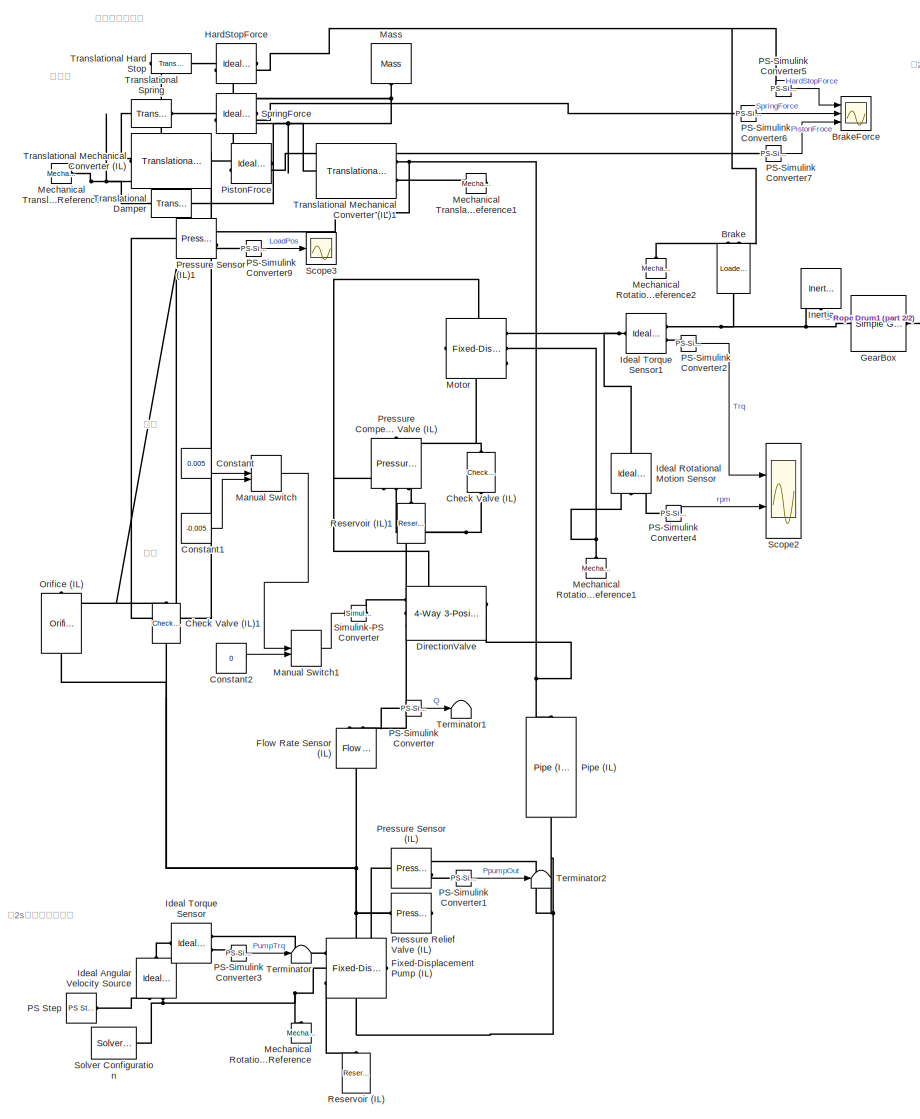
[diagram: root canvas - part 1/2, center side, full height]
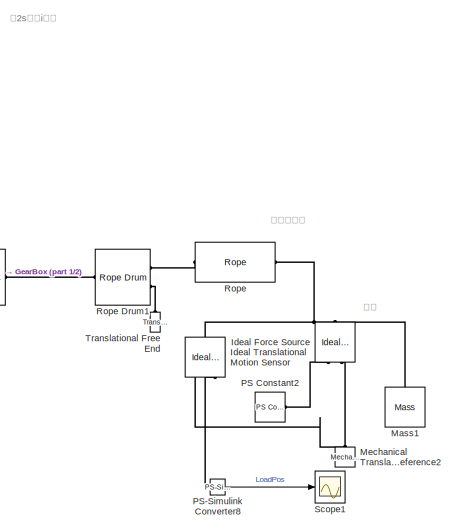
[diagram: root canvas - part 2/2, top right region]
MODEL slx_b5b58f43c9d5
KIND model
CONFIG AbsTol = auto
CONFIG EnableMultiTasking = off
CONFIG FixedStep = auto
CONFIG MaxStep = auto
CONFIG MinStep = auto
CONFIG RelTol = 1e-3
CONFIG SampleTimeConstraint = Unconstrained
CONFIG SolverName = VariableStepAuto
CONFIG StartTime = 0.0
CONFIG StopTime = 100
BLOCK [Reference] Brake  REF=sdl_lib/Brakes & Detents/Rotational/Loaded-Contact
Rotational Friction
  NameLocation = left
  Ports = [0, 0, 0, 0, 0, 2, 1]
  SourceBlock = sdl_lib/Brakes & Detents/Rotational/Loaded-Contact\nRotational Friction
  SourceProductBaseCode = LD
  SourceType = Loaded-Contact\nRotational Friction
BLOCK [Scope] BrakeForce
  Floating = off
  NumInputPorts = 3
  Ports = [3]
  ScopeSpecificationString = Simulink.scopes.TimeScopeBlockCfg('CurrentConfiguration', extmgr.ConfigurationSet(extmgr.Configuration('Core','General UI',true),extmgr.Configuration('Core','Source UI',true),extmgr.Configuration('Sources','WiredSimulink',true),extmgr.Configuration('Visuals','Time Domain',true,'SerializedDisplays',{struct('MinYLimReal','-10239.84159','MaxYLimReal','-7841.42571','YLabelReal','','MinYLimMag','   0.0...<+2815ch>
BLOCK [Reference] Check Valve (IL)  REF=SimscapeFluids_lib/Isothermal Liquid/Valves & Orifices/Directional Control
Valves/Check Valve (IL)
  AttributesFormatString = %<p_crack_differential> %<p_crack_differential_unit>
  NameLocation = right
  Ports = [0, 0, 0, 0, 0, 1, 1]
  SourceBlock = SimscapeFluids_lib/Isothermal Liquid/Valves & Orifices/Directional Control\nValves/Check Valve (IL)
  SourceProductBaseCode = SH
  SourceType = Check Valve (IL)
BLOCK [Reference] Check Valve (IL)1  REF=SimscapeFluids_lib/Isothermal Liquid/Valves & Orifices/Directional Control
Valves/Check Valve (IL)
  AttributesFormatString = %<p_crack_differential> %<p_crack_differential_unit>
  NameLocation = left
  Ports = [0, 0, 0, 0, 0, 1, 1]
  SourceBlock = SimscapeFluids_lib/Isothermal Liquid/Valves & Orifices/Directional Control\nValves/Check Valve (IL)
  SourceProductBaseCode = SH
  SourceType = Check Valve (IL)
BLOCK [Constant] Constant
  Value = 0.005
BLOCK [Constant] Constant1
  Value = -0.005
BLOCK [Constant] Constant2
  Value = 0
BLOCK [Reference] DirectionValve  REF=SimscapeFluids_lib/Isothermal Liquid/Valves & Orifices/Directional Control
Valves/4-Way 3-Position
Directional Valve
(IL)
  Ports = [0, 0, 0, 0, 0, 3, 2]
  SourceBlock = SimscapeFluids_lib/Isothermal Liquid/Valves & Orifices/Directional Control\nValves/4-Way 3-Position\nDirectional Valve\n(IL)
  SourceProductBaseCode = SH
  SourceType = 4-Way 3-Position\nDirectional Valve\n(IL)
BLOCK [Reference] Fixed-Displacement Pump (IL)  REF=SimscapeFluids_lib/Isothermal Liquid/Pumps & Motors/Fixed-Displacement
Pump (IL)
  NameLocation = top
  Ports = [0, 0, 0, 0, 0, 1, 3]
  SourceBlock = SimscapeFluids_lib/Isothermal Liquid/Pumps & Motors/Fixed-Displacement\nPump (IL)
  SourceProductBaseCode = SH
  SourceType = Fixed-Displacement\nPump (IL)
BLOCK [Reference] Flow Rate Sensor (IL)  REF=fl_lib/Isothermal Liquid/Sensors/Flow Rate Sensor
(IL)
  NameLocation = right
  Ports = [0, 0, 0, 0, 0, 1, 2]
  SourceBlock = fl_lib/Isothermal Liquid/Sensors/Flow Rate Sensor\n(IL)
  SourceProductBaseCode = PW,SS,VE
  SourceType = Flow Rate Sensor\n(IL)
BLOCK [Reference] GearBox  REF=sdl_lib/Gears/Simple Gear
  Ports = [0, 0, 0, 0, 0, 1, 1]
  SourceBlock = sdl_lib/Gears/Simple Gear
  SourceProductBaseCode = LD
  SourceType = Simple Gear
BLOCK [Reference] HardStopForce  REF=fl_lib/Mechanical/Mechanical Sensors/Ideal Force Sensor
  Ports = [0, 0, 0, 0, 0, 1, 2]
  SourceBlock = fl_lib/Mechanical/Mechanical Sensors/Ideal Force Sensor
  SourceProductBaseCode = PW,SS,VE
  SourceType = Ideal Force Sensor
BLOCK [Reference] Ideal Angular Velocity Source  REF=fl_lib/Mechanical/Mechanical Sources/Ideal Angular
Velocity Source
  NameLocation = right
  Ports = [0, 0, 0, 0, 0, 1, 2]
  SourceBlock = fl_lib/Mechanical/Mechanical Sources/Ideal Angular\nVelocity Source
  SourceProductBaseCode = PW,SS,VE
  SourceType = Ideal Angular\nVelocity Source
BLOCK [Reference] Ideal Force Source  REF=fl_lib/Mechanical/Mechanical Sources/Ideal Force Source
  NameLocation = right
  Ports = [0, 0, 0, 0, 0, 1, 2]
  SourceBlock = fl_lib/Mechanical/Mechanical Sources/Ideal Force Source
  SourceProductBaseCode = PW,SS,VE
  SourceType = Ideal Force Source
BLOCK [Reference] Ideal Rotational Motion Sensor  REF=fl_lib/Mechanical/Mechanical Sensors/Ideal Rotational
Motion Sensor
  NameLocation = left
  Ports = [0, 0, 0, 0, 0, 1, 3]
  SourceBlock = fl_lib/Mechanical/Mechanical Sensors/Ideal Rotational\nMotion Sensor
  SourceProductBaseCode = PW,SS,VE
  SourceType = Ideal Rotational\nMotion Sensor
BLOCK [Reference] Ideal Torque Sensor  REF=fl_lib/Mechanical/Mechanical Sensors/Ideal Torque Sensor
  Ports = [0, 0, 0, 0, 0, 1, 2]
  SourceBlock = fl_lib/Mechanical/Mechanical Sensors/Ideal Torque Sensor
  SourceProductBaseCode = PW,SS,VE
  SourceType = Ideal Torque Sensor
BLOCK [Reference] Ideal Torque Sensor1  REF=fl_lib/Mechanical/Mechanical Sensors/Ideal Torque Sensor
  Ports = [0, 0, 0, 0, 0, 1, 2]
  SourceBlock = fl_lib/Mechanical/Mechanical Sensors/Ideal Torque Sensor
  SourceProductBaseCode = PW,SS,VE
  SourceType = Ideal Torque Sensor
BLOCK [Reference] Ideal Translational Motion Sensor  REF=fl_lib/Mechanical/Mechanical Sensors/Ideal Translational
Motion Sensor
  NameLocation = left
  Ports = [0, 0, 0, 0, 0, 1, 3]
  SourceBlock = fl_lib/Mechanical/Mechanical Sensors/Ideal Translational\nMotion Sensor
  SourceProductBaseCode = PW,SS,VE
  SourceType = Ideal Translational\nMotion Sensor
BLOCK [Reference] Inertia  REF=fl_lib/Mechanical/Rotational Elements/Inertia
  NameLocation = left
  Ports = [0, 0, 0, 0, 0, 1]
  SourceBlock = fl_lib/Mechanical/Rotational Elements/Inertia
  SourceProductBaseCode = PW,SS,VE
  SourceType = Inertia
BLOCK [ManualSwitch] Manual Switch
BLOCK [ManualSwitch] Manual Switch1
  CurrentSetting = 0
BLOCK [Reference] Mass  REF=fl_lib/Mechanical/Translational
Elements/Mass
  NameLocation = left
  Ports = [0, 0, 0, 0, 0, 1]
  SourceBlock = fl_lib/Mechanical/Translational\nElements/Mass
  SourceProductBaseCode = PW,SS,VE
  SourceType = Mass
BLOCK [Reference] Mass1  REF=fl_lib/Mechanical/Translational
Elements/Mass
  NameLocation = right
  Ports = [0, 0, 0, 0, 0, 1]
  SourceBlock = fl_lib/Mechanical/Translational\nElements/Mass
  SourceProductBaseCode = PW,SS,VE
  SourceType = Mass
BLOCK [Reference] Mechanical Rotational Reference  REF=fl_lib/Mechanical/Rotational Elements/Mechanical
Rotational Reference
  NameLocation = right
  Ports = [0, 0, 0, 0, 0, 1]
  SourceBlock = fl_lib/Mechanical/Rotational Elements/Mechanical\nRotational Reference
  SourceProductBaseCode = PW,SS,VE
  SourceType = Mechanical\nRotational Reference
BLOCK [Reference] Mechanical Rotational Reference1  REF=fl_lib/Mechanical/Rotational Elements/Mechanical
Rotational Reference
  NameLocation = right
  Ports = [0, 0, 0, 0, 0, 1]
  SourceBlock = fl_lib/Mechanical/Rotational Elements/Mechanical\nRotational Reference
  SourceProductBaseCode = PW,SS,VE
  SourceType = Mechanical\nRotational Reference
BLOCK [Reference] Mechanical Rotational Reference2  REF=fl_lib/Mechanical/Rotational Elements/Mechanical
Rotational Reference
  NameLocation = right
  Ports = [0, 0, 0, 0, 0, 1]
  SourceBlock = fl_lib/Mechanical/Rotational Elements/Mechanical\nRotational Reference
  SourceProductBaseCode = PW,SS,VE
  SourceType = Mechanical\nRotational Reference
BLOCK [Reference] Mechanical Translational Reference  REF=fl_lib/Mechanical/Translational
Elements/Mechanical
Translational
Reference
  Ports = [0, 0, 0, 0, 0, 1]
  SourceBlock = fl_lib/Mechanical/Translational\nElements/Mechanical\nTranslational\nReference
  SourceProductBaseCode = PW,SS,VE
  SourceType = Mechanical\nTranslational\nReference
BLOCK [Reference] Mechanical Translational Reference1  REF=fl_lib/Mechanical/Translational
Elements/Mechanical
Translational
Reference
  NameLocation = top
  Ports = [0, 0, 0, 0, 0, 1]
  SourceBlock = fl_lib/Mechanical/Translational\nElements/Mechanical\nTranslational\nReference
  SourceProductBaseCode = PW,SS,VE
  SourceType = Mechanical\nTranslational\nReference
BLOCK [Reference] Mechanical Translational Reference2  REF=fl_lib/Mechanical/Translational
Elements/Mechanical
Translational
Reference
  NameLocation = right
  Ports = [0, 0, 0, 0, 0, 1]
  SourceBlock = fl_lib/Mechanical/Translational\nElements/Mechanical\nTranslational\nReference
  SourceProductBaseCode = PW,SS,VE
  SourceType = Mechanical\nTranslational\nReference
BLOCK [Reference] Motor  REF=SimscapeFluids_lib/Isothermal Liquid/Pumps & Motors/Fixed-Displacement
Motor (IL)
  Ports = [0, 0, 0, 0, 0, 1, 3]
  SourceBlock = SimscapeFluids_lib/Isothermal Liquid/Pumps & Motors/Fixed-Displacement\nMotor (IL)
  SourceProductBaseCode = SH
  SourceType = Fixed-Displacement\nMotor (IL)
BLOCK [Reference] Orifice (IL)  REF=SimscapeFluids_lib/Isothermal Liquid/Valves & Orifices/Orifices/Orifice (IL)
  NameLocation = left
  Ports = [0, 0, 0, 0, 0, 1, 1]
  SourceBlock = SimscapeFluids_lib/Isothermal Liquid/Valves & Orifices/Orifices/Orifice (IL)
  SourceProductBaseCode = SH
  SourceType = Orifice (IL)
BLOCK [Reference] PS Constant2  REF=fl_lib/Physical Signals/Sources/PS Constant
  AttributesFormatString = %<constant> %<constant_unit>
  Ports = [0, 0, 0, 0, 0, 0, 1]
  SourceBlock = fl_lib/Physical Signals/Sources/PS Constant
  SourceProductBaseCode = PW,SS,VE
  SourceType = PS Constant
BLOCK [Reference] PS Step  REF=fl_lib/Physical Signals/Sources/PS Step
  Ports = [0, 0, 0, 0, 0, 0, 1]
  SourceBlock = fl_lib/Physical Signals/Sources/PS Step
  SourceProductBaseCode = PW,SS,VE
  SourceType = PS Step
BLOCK [Reference] PS-Simulink Converter  REF=nesl_utility/PS-Simulink
Converter
  AttributesFormatString = %<Unit>
  Ports = [0, 1, 0, 0, 0, 1]
  SourceBlock = nesl_utility/PS-Simulink\nConverter
  SourceProductBaseCode = SS,PW,VE
  SourceType = PS-Simulink\nConverter
BLOCK [Reference] PS-Simulink Converter1  REF=nesl_utility/PS-Simulink
Converter
  AttributesFormatString = %<Unit>
  Ports = [0, 1, 0, 0, 0, 1]
  SourceBlock = nesl_utility/PS-Simulink\nConverter
  SourceProductBaseCode = SS,PW,VE
  SourceType = PS-Simulink\nConverter
BLOCK [Reference] PS-Simulink Converter2  REF=nesl_utility/PS-Simulink
Converter
  AttributesFormatString = %<Unit>
  Ports = [0, 1, 0, 0, 0, 1]
  SourceBlock = nesl_utility/PS-Simulink\nConverter
  SourceProductBaseCode = SS,PW,VE
  SourceType = PS-Simulink\nConverter
BLOCK [Reference] PS-Simulink Converter3  REF=nesl_utility/PS-Simulink
Converter
  AttributesFormatString = %<Unit>
  Ports = [0, 1, 0, 0, 0, 1]
  SourceBlock = nesl_utility/PS-Simulink\nConverter
  SourceProductBaseCode = SS,PW,VE
  SourceType = PS-Simulink\nConverter
BLOCK [Reference] PS-Simulink Converter4  REF=nesl_utility/PS-Simulink
Converter
  AttributesFormatString = %<Unit>
  Ports = [0, 1, 0, 0, 0, 1]
  SourceBlock = nesl_utility/PS-Simulink\nConverter
  SourceProductBaseCode = SS,PW,VE
  SourceType = PS-Simulink\nConverter
BLOCK [Reference] PS-Simulink Converter5  REF=nesl_utility/PS-Simulink
Converter
  AttributesFormatString = %<Unit>
  Ports = [0, 1, 0, 0, 0, 1]
  SourceBlock = nesl_utility/PS-Simulink\nConverter
  SourceProductBaseCode = SS,PW,VE
  SourceType = PS-Simulink\nConverter
BLOCK [Reference] PS-Simulink Converter6  REF=nesl_utility/PS-Simulink
Converter
  AttributesFormatString = %<Unit>
  Ports = [0, 1, 0, 0, 0, 1]
  SourceBlock = nesl_utility/PS-Simulink\nConverter
  SourceProductBaseCode = SS,PW,VE
  SourceType = PS-Simulink\nConverter
BLOCK [Reference] PS-Simulink Converter7  REF=nesl_utility/PS-Simulink
Converter
  AttributesFormatString = %<Unit>
  Ports = [0, 1, 0, 0, 0, 1]
  SourceBlock = nesl_utility/PS-Simulink\nConverter
  SourceProductBaseCode = SS,PW,VE
  SourceType = PS-Simulink\nConverter
BLOCK [Reference] PS-Simulink Converter8  REF=nesl_utility/PS-Simulink
Converter
  AttributesFormatString = %<Unit>
  Ports = [0, 1, 0, 0, 0, 1]
  SourceBlock = nesl_utility/PS-Simulink\nConverter
  SourceProductBaseCode = SS,PW,VE
  SourceType = PS-Simulink\nConverter
BLOCK [Reference] PS-Simulink Converter9  REF=nesl_utility/PS-Simulink
Converter
  AttributesFormatString = %<Unit>
  Ports = [0, 1, 0, 0, 0, 1]
  SourceBlock = nesl_utility/PS-Simulink\nConverter
  SourceProductBaseCode = SS,PW,VE
  SourceType = PS-Simulink\nConverter
BLOCK [Reference] Pipe (IL)  REF=fl_lib/Isothermal Liquid/Elements/Pipe (IL)
  NameLocation = left
  Ports = [0, 0, 0, 0, 0, 1, 1]
  SourceBlock = fl_lib/Isothermal Liquid/Elements/Pipe (IL)
  SourceProductBaseCode = PW,SS,VE
  SourceType = Pipe (IL)
BLOCK [Reference] PistonFroce  REF=fl_lib/Mechanical/Mechanical Sensors/Ideal Force Sensor
  Ports = [0, 0, 0, 0, 0, 1, 2]
  SourceBlock = fl_lib/Mechanical/Mechanical Sensors/Ideal Force Sensor
  SourceProductBaseCode = PW,SS,VE
  SourceType = Ideal Force Sensor
BLOCK [Reference] Pressure Compensator Valve (IL)  REF=SimscapeFluids_lib/Isothermal Liquid/Valves & Orifices/Pressure Control
Valves/Pressure Compensator
Valve (IL)
  NameLocation = left
  Ports = [0, 0, 0, 0, 0, 1, 3]
  SourceBlock = SimscapeFluids_lib/Isothermal Liquid/Valves & Orifices/Pressure Control\nValves/Pressure Compensator\nValve (IL)
  SourceProductBaseCode = SH
  SourceType = Pressure Compensator\nValve (IL)
BLOCK [Reference] Pressure Relief Valve (IL)  REF=SimscapeFluids_lib/Isothermal Liquid/Valves & Orifices/Pressure Control
Valves/Pressure Relief
Valve (IL)
  AttributesFormatString = %<p_set_differential> %<p_set_differential_unit>
  Ports = [0, 0, 0, 0, 0, 1, 1]
  SourceBlock = SimscapeFluids_lib/Isothermal Liquid/Valves & Orifices/Pressure Control\nValves/Pressure Relief\nValve (IL)
  SourceProductBaseCode = SH
  SourceType = Pressure Relief\nValve (IL)
BLOCK [Reference] Pressure Sensor (IL)  REF=fl_lib/Isothermal Liquid/Sensors/Pressure Sensor (IL)
  Ports = [0, 0, 0, 0, 0, 1, 2]
  SourceBlock = fl_lib/Isothermal Liquid/Sensors/Pressure Sensor (IL)
  SourceProductBaseCode = PW,SS,VE
  SourceType = Pressure Sensor (IL)
BLOCK [Reference] Pressure Sensor (IL)1  REF=fl_lib/Isothermal Liquid/Sensors/Pressure Sensor (IL)
  Ports = [0, 0, 0, 0, 0, 1, 2]
  SourceBlock = fl_lib/Isothermal Liquid/Sensors/Pressure Sensor (IL)
  SourceProductBaseCode = PW,SS,VE
  SourceType = Pressure Sensor (IL)
BLOCK [Reference] Reservoir (IL)  REF=fl_lib/Isothermal Liquid/Elements/Reservoir (IL)
  NameLocation = right
  Ports = [0, 0, 0, 0, 0, 1]
  SourceBlock = fl_lib/Isothermal Liquid/Elements/Reservoir (IL)
  SourceProductBaseCode = PW,SS,VE
  SourceType = Reservoir (IL)
BLOCK [Reference] Reservoir (IL)1  REF=fl_lib/Isothermal Liquid/Elements/Reservoir (IL)
  NameLocation = right
  Ports = [0, 0, 0, 0, 0, 1]
  SourceBlock = fl_lib/Isothermal Liquid/Elements/Reservoir (IL)
  SourceProductBaseCode = PW,SS,VE
  SourceType = Reservoir (IL)
BLOCK [Reference] Rope  REF=sdl_lib/Couplings & Drives/Rope
  Ports = [0, 0, 0, 0, 0, 1, 1]
  SourceBlock = sdl_lib/Couplings & Drives/Rope
  SourceProductBaseCode = LD
  SourceType = Rope
BLOCK [Reference] Rope Drum1  REF=sdl_lib/Couplings & Drives/Rope Drum
  Ports = [0, 0, 0, 0, 0, 1, 2]
  SourceBlock = sdl_lib/Couplings & Drives/Rope Drum
  SourceProductBaseCode = LD
  SourceType = Rope Drum
BLOCK [Scope] Scope1
  Floating = off
  NumInputPorts = 1
  Ports = [1]
  ScopeSpecificationString = Simulink.scopes.TimeScopeBlockCfg('CurrentConfiguration', extmgr.ConfigurationSet(extmgr.Configuration('Core','General UI',true),extmgr.Configuration('Core','Source UI',true),extmgr.Configuration('Sources','WiredSimulink',true,'DataLoggingVariableName','ScopeData1'),extmgr.Configuration('Visuals','Time Domain',true,'SerializedDisplays',{struct('MinYLimReal','-4.17879','MaxYLimReal','0.46431','YLab...<+1447ch>
BLOCK [Scope] Scope2
  Floating = off
  NumInputPorts = 2
  Ports = [2]
  ScopeSpecificationString = Simulink.scopes.TimeScopeBlockCfg('CurrentConfiguration', extmgr.ConfigurationSet(extmgr.Configuration('Core','General UI',true),extmgr.Configuration('Core','Source UI',true),extmgr.Configuration('Sources','WiredSimulink',true,'DataLoggingVariableName','ScopeData2'),extmgr.Configuration('Visuals','Time Domain',true,'SerializedDisplays',{struct('MinYLimReal','-115.01233','MaxYLimReal','168.64889','...<+2057ch>
BLOCK [Scope] Scope3
  Floating = off
  NumInputPorts = 1
  Ports = [1]
  ScopeSpecificationString = Simulink.scopes.TimeScopeBlockCfg('CurrentConfiguration', extmgr.ConfigurationSet(extmgr.Configuration('Core','General UI',true),extmgr.Configuration('Core','Source UI',true),extmgr.Configuration('Sources','WiredSimulink',true,'DataLoggingVariableName','ScopeData3'),extmgr.Configuration('Visuals','Time Domain',true,'SerializedDisplays',{struct('MinYLimReal','-41963.17329','MaxYLimReal','377668.559...<+1455ch>
BLOCK [Reference] Simulink-PS Converter  REF=nesl_utility/Simulink-PS
Converter
  AttributesFormatString = %<Unit>
  Ports = [1, 0, 0, 0, 0, 0, 1]
  SourceBlock = nesl_utility/Simulink-PS\nConverter
  SourceProductBaseCode = SS,PW,VE
  SourceType = Simulink-PS\nConverter
BLOCK [Reference] Solver Configuration  REF=nesl_utility/Solver
Configuration
  Ports = [0, 0, 0, 0, 0, 0, 1]
  SourceBlock = nesl_utility/Solver\nConfiguration
  SourceProductBaseCode = SS,PW,VE
  SourceType = Solver\nConfiguration
BLOCK [Reference] SpringForce  REF=fl_lib/Mechanical/Mechanical Sensors/Ideal Force Sensor
  Ports = [0, 0, 0, 0, 0, 1, 2]
  SourceBlock = fl_lib/Mechanical/Mechanical Sensors/Ideal Force Sensor
  SourceProductBaseCode = PW,SS,VE
  SourceType = Ideal Force Sensor
BLOCK [Terminator] Terminator
BLOCK [Terminator] Terminator1
BLOCK [Terminator] Terminator2
BLOCK [Reference] Translational Damper  REF=fl_lib/Mechanical/Translational
Elements/Translational Damper
  Ports = [0, 0, 0, 0, 0, 1, 1]
  SourceBlock = fl_lib/Mechanical/Translational\nElements/Translational Damper
  SourceProductBaseCode = PW,SS,VE
  SourceType = Translational Damper
BLOCK [Reference] Translational Free End  REF=fl_lib/Mechanical/Translational
Elements/Translational Free
End
  NameLocation = right
  Ports = [0, 0, 0, 0, 0, 1]
  SourceBlock = fl_lib/Mechanical/Translational\nElements/Translational Free\nEnd
  SourceProductBaseCode = PW,SS,VE
  SourceType = Translational Free\nEnd
BLOCK [Reference] Translational Hard Stop  REF=fl_lib/Mechanical/Translational
Elements/Translational Hard
Stop
  NameLocation = top
  Ports = [0, 0, 0, 0, 0, 1, 1]
  SourceBlock = fl_lib/Mechanical/Translational\nElements/Translational Hard\nStop
  SourceProductBaseCode = PW,SS,VE
  SourceType = Translational Hard\nStop
BLOCK [Reference] Translational Mechanical Converter (IL)  REF=fl_lib/Isothermal Liquid/Elements/Translational
Mechanical Converter
(IL)
  Ports = [0, 0, 0, 0, 0, 2, 1]
  SourceBlock = fl_lib/Isothermal Liquid/Elements/Translational\nMechanical Converter\n(IL)
  SourceProductBaseCode = PW,SS,VE
  SourceType = Translational\nMechanical Converter\n(IL)
BLOCK [Reference] Translational Mechanical Converter (IL)1  REF=fl_lib/Isothermal Liquid/Elements/Translational
Mechanical Converter
(IL)
  NameLocation = top
  Ports = [0, 0, 0, 0, 0, 2, 1]
  SourceBlock = fl_lib/Isothermal Liquid/Elements/Translational\nMechanical Converter\n(IL)
  SourceProductBaseCode = PW,SS,VE
  SourceType = Translational\nMechanical Converter\n(IL)
BLOCK [Reference] Translational Spring  REF=fl_lib/Mechanical/Translational
Elements/Translational Spring
  Ports = [0, 0, 0, 0, 0, 1, 1]
  SourceBlock = fl_lib/Mechanical/Translational\nElements/Translational Spring
  SourceProductBaseCode = PW,SS,VE
  SourceType = Translational Spring
ANNOTATION (root): 初始伸长量
ANNOTATION (root): 初始位置：端部
ANNOTATION (root): 右位
ANNOTATION (root): 左位
ANNOTATION (root): 第2s开始i卸载
ANNOTATION (root): 第2s开始驱动泵工作
ANNOTATION (root): 重力
ANNOTATION (root): 预紧力
LINE Constant1:1 -> Manual Switch:2
LINE Constant2:1 -> Manual Switch1:2
LINE Constant:1 -> Manual Switch:1
LINE Manual Switch1:1 -> Simulink-PS Converter:1
LINE Manual Switch:1 -> Manual Switch1:1
LINE PS-Simulink Converter1:1 -> Terminator2:1
LINE PS-Simulink Converter2:1 -> Scope2:1
LINE PS-Simulink Converter3:1 -> Terminator:1
LINE PS-Simulink Converter4:1 -> Scope2:2
LINE PS-Simulink Converter5:1 -> BrakeForce:1
LINE PS-Simulink Converter6:1 -> BrakeForce:2
LINE PS-Simulink Converter7:1 -> BrakeForce:3
LINE PS-Simulink Converter8:1 -> Scope1:1
LINE PS-Simulink Converter9:1 -> Scope3:1
LINE PS-Simulink Converter:1 -> Terminator1:1
PNET net1: Brake:LConn1 -- HardStopForce:RConn2 -- PS-Simulink Converter5:LConn1
PLINE Brake:LConn2 -- Mechanical Rotational Reference2:LConn1
PNET net2: Brake:RConn1 -- GearBox:LConn1 -- Ideal Torque Sensor1:RConn1 -- Inertia:LConn1
PNET net3: Check Valve (IL)1:LConn1 -- Orifice (IL):LConn1 -- Pressure Sensor (IL)1:LConn1 -- Translational Mechanical Converter (IL):LConn1
PNET net4: Check Valve (IL)1:RConn1 -- Fixed-Displacement Pump (IL):LConn1 -- Flow Rate Sensor (IL):LConn1 -- Orifice (IL):RConn1 -- Pressure Relief Valve (IL):LConn1 -- Pressure Sensor (IL):LConn1
PNET net5: Check Valve (IL):LConn1 -- DirectionValve:LConn3 -- Pressure Compensator Valve (IL):RConn2
PNET net6: Check Valve (IL):RConn1 -- Motor:RConn3 -- Pressure Compensator Valve (IL):LConn1
PLINE DirectionValve:LConn1 -- Simulink-PS Converter:RConn1
PNET net7: DirectionValve:LConn2 -- Motor:LConn1 -- Pressure Compensator Valve (IL):RConn1
PLINE DirectionValve:RConn1 -- Flow Rate Sensor (IL):RConn1
PNET net8: DirectionValve:RConn2 -- Pipe (IL):LConn1 -- Pressure Sensor (IL)1:RConn1 -- Translational Mechanical Converter (IL)1:LConn1
PLINE Fixed-Displacement Pump (IL):RConn1 -- Ideal Torque Sensor:RConn1
PNET net9: Fixed-Displacement Pump (IL):RConn2 -- Ideal Angular Velocity Source:RConn2 -- Mechanical Rotational Reference:LConn1 -- Solver Configuration:RConn1
PNET net10: Fixed-Displacement Pump (IL):RConn3 -- Pipe (IL):RConn1 -- Pressure Relief Valve (IL):RConn1 -- Pressure Sensor (IL):RConn1 -- Reservoir (IL):LConn1
PLINE Flow Rate Sensor (IL):RConn2 -- PS-Simulink Converter:LConn1
PLINE GearBox:RConn1 -- Rope Drum1:LConn1
PLINE HardStopForce:LConn1 -- Translational Hard Stop:LConn1
PNET net11: HardStopForce:RConn1 -- Mass:LConn1 -- PistonFroce:RConn1 -- SpringForce:RConn1 -- Translational Damper:RConn1 -- Translational Mechanical Converter (IL)1:RConn1
PLINE Ideal Angular Velocity Source:LConn1 -- Ideal Torque Sensor:LConn1
PLINE Ideal Angular Velocity Source:RConn1 -- PS Step:RConn1
PNET net12: Ideal Force Source:LConn1 -- Ideal Translational Motion Sensor:LConn1 -- Mass1:LConn1 -- Rope:RConn1
PLINE Ideal Force Source:RConn1 -- PS Constant2:RConn1
PNET net13: Ideal Force Source:RConn2 -- Ideal Translational Motion Sensor:RConn1 -- Mechanical Translational Reference2:LConn1
PNET net14: Ideal Rotational Motion Sensor:LConn1 -- Ideal Torque Sensor1:LConn1 -- Motor:RConn1
PNET net15: Ideal Rotational Motion Sensor:RConn1 -- Mechanical Rotational Reference1:LConn1 -- Motor:RConn2
PLINE Ideal Rotational Motion Sensor:RConn2 -- PS-Simulink Converter4:LConn1
PLINE Ideal Torque Sensor1:RConn2 -- PS-Simulink Converter2:LConn1
PLINE Ideal Torque Sensor:RConn2 -- PS-Simulink Converter3:LConn1
PLINE Ideal Translational Motion Sensor:RConn3 -- PS-Simulink Converter8:LConn1
PLINE Mechanical Translational Reference1:LConn1 -- Translational Mechanical Converter (IL)1:LConn2
PNET net16: Mechanical Translational Reference:LConn1 -- Translational Damper:LConn1 -- Translational Hard Stop:RConn1 -- Translational Mechanical Converter (IL):LConn2 -- Translational Spring:LConn1
PLINE PS-Simulink Converter1:LConn1 -- Pressure Sensor (IL):RConn2
PLINE PS-Simulink Converter6:LConn1 -- SpringForce:RConn2
PLINE PS-Simulink Converter7:LConn1 -- PistonFroce:RConn2
PLINE PS-Simulink Converter9:LConn1 -- Pressure Sensor (IL)1:RConn2
PLINE PistonFroce:LConn1 -- Translational Mechanical Converter (IL):RConn1
PLINE Pressure Compensator Valve (IL):RConn3 -- Reservoir (IL)1:LConn1
PLINE Rope Drum1:RConn1 -- Rope:LConn1
PLINE Rope Drum1:RConn2 -- Translational Free End:LConn1
PLINE SpringForce:LConn1 -- Translational Spring:RConn1
note: PNET lines group multi-terminal physical nets as a canonical sorted terminal list (undirected conserving connections); 2-terminal nets keep the pairwise PLINE form
